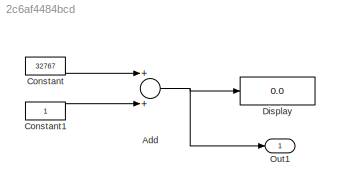
MODEL slx_2c6af4484bcd
KIND model
CONFIG AbsTol = auto
CONFIG FixedStep = auto
CONFIG MaxStep = auto
CONFIG MinStep = auto
CONFIG RelTol = 1e-3
CONFIG SampleTimeConstraint = Unconstrained
CONFIG Solver = FixedStepDiscrete
CONFIG SolverMode = Auto
CONFIG SolverName = FixedStepDiscrete
CONFIG StartTime = 0.0
CONFIG StopTime = 10.0
BLOCK [Sum] Add
  InputSameDT = off
  OutDataTypeStr = Inherit: Inherit via internal rule
  Ports = [2, 1]
  SaturateOnIntegerOverflow = off
BLOCK [Constant] Constant
  AttributesFormatString = DataType = %<OutDataTypeStr>
  OutDataTypeStr = int16
  SampleTime = -1
  Value = 32767
BLOCK [Constant] Constant1
  AttributesFormatString = DataType = %<OutDataTypeStr>
  OutDataTypeStr = int16
  SampleTime = -1
BLOCK [Display] Display
  AttributesFormatString = Format = %<Format>
  Decimation = 1
  Format = long
  Ports = [1]
BLOCK [Outport] Out1
  IconDisplay = Port number
NET Add:1 -> Display:1, Out1:1
LINE Constant1:1 -> Add:2
LINE Constant:1 -> Add:1
note: NET lines group one-source signal fan-out (src -> all destinations, sorted); 1:1 wires keep LINE
